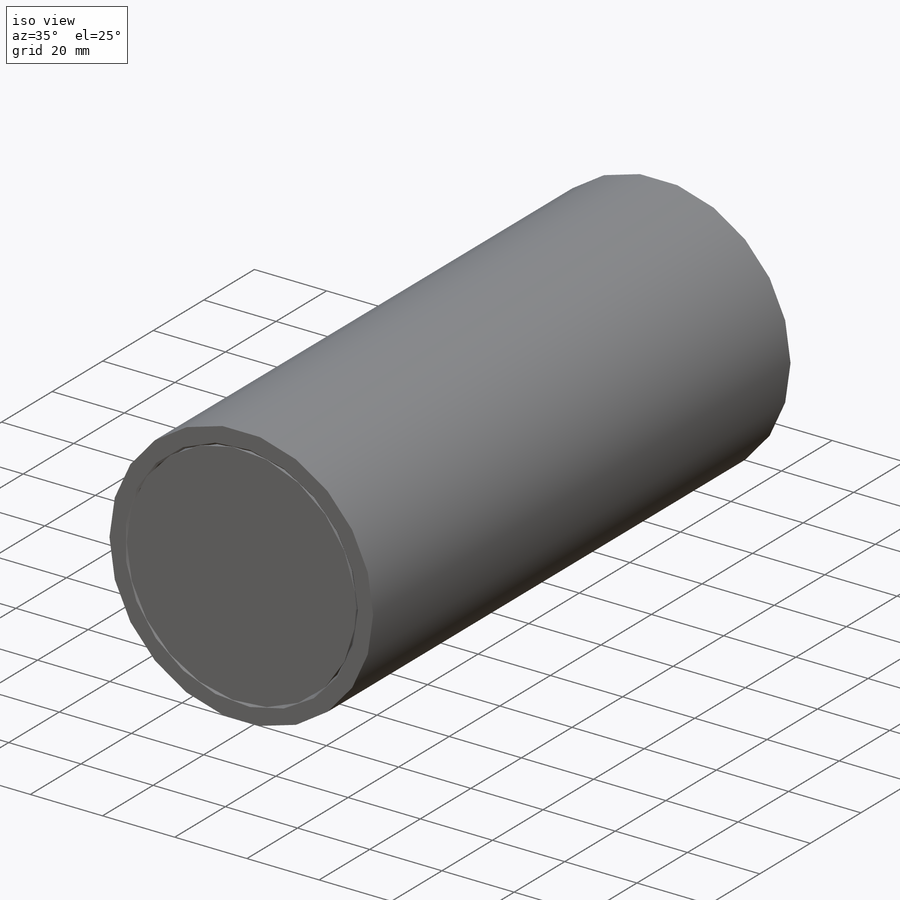
[diagram: iso view]
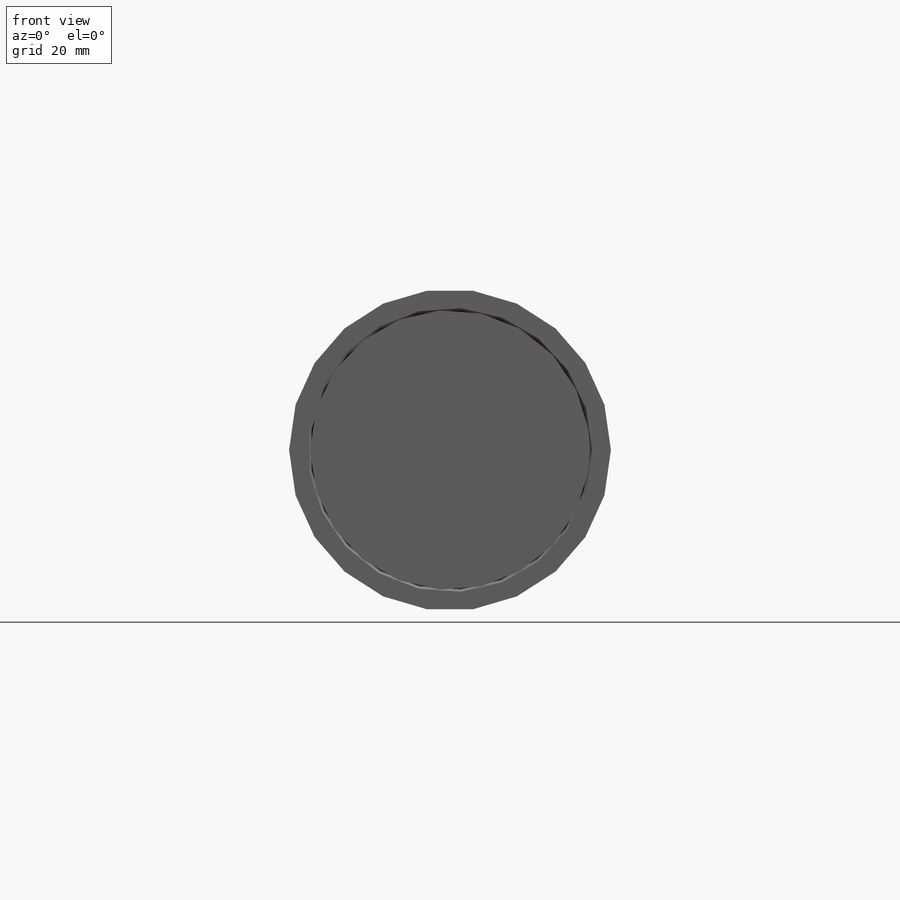
[diagram: front view]
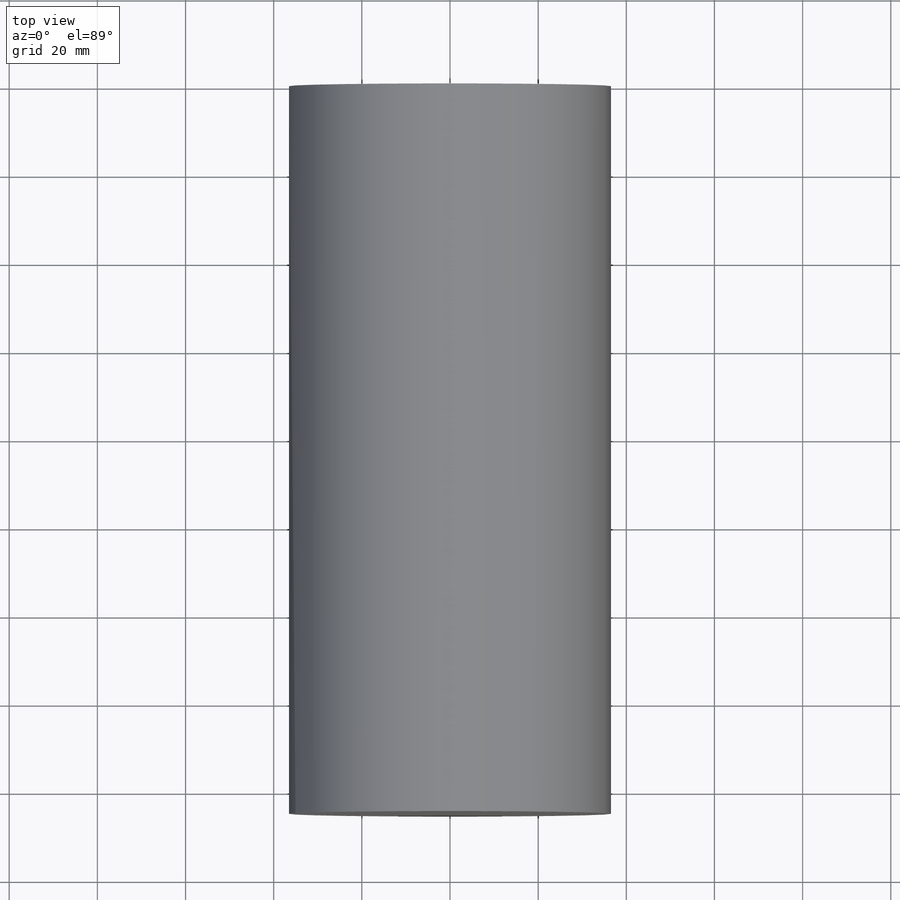
[diagram: top view]
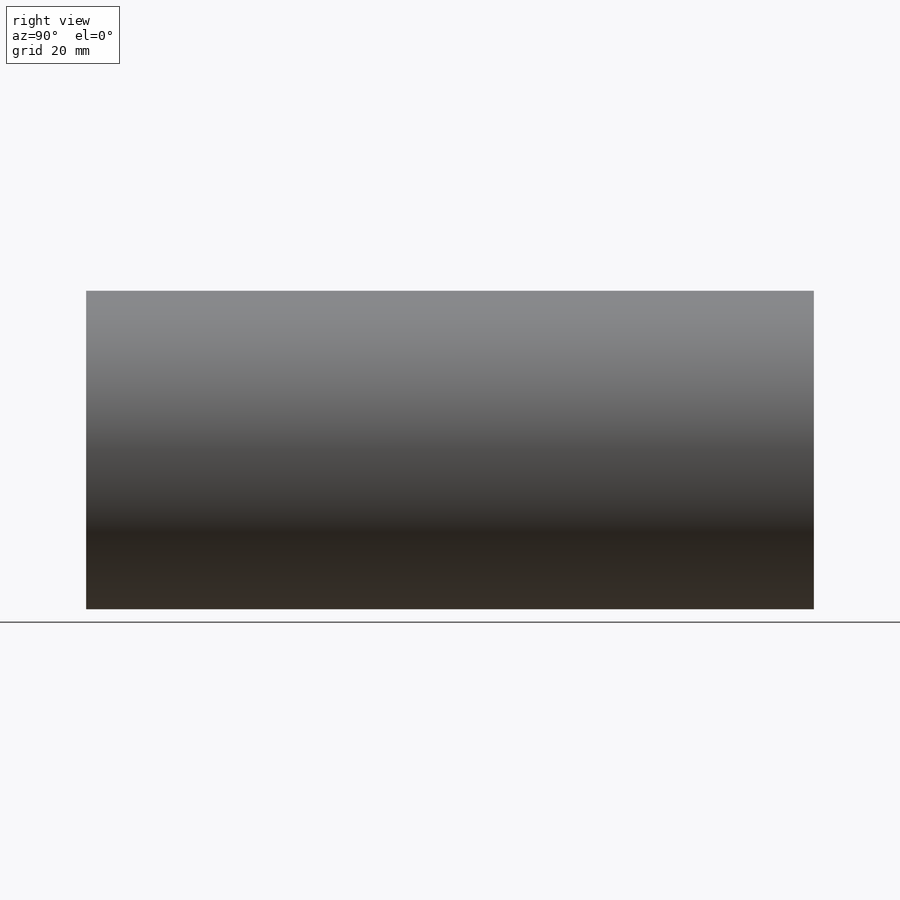
[diagram: right view]
SOLIDWORKS PART (.sldprt)
format: sldprt  version: not decoded by parser v0  size: 225,280 bytes
history: native  units: mm
features: sketch x4, extrude x2, material x1, chamfer x1 (+11 scaffold rows collapsed)
feature tree (19):
  scaffold x11  (default folders/planes/origin — collapsed)
  material  "6061 Alloy"
  sketch  "Sketch1"  dims[D1=42.8625mm]
  extrude  "Extrude1"  Depth=165.1mm
  sketch  "Sketch2"  dims[c1.D1=45.0deg c2.D1=1.5875mm c2.D2=19.05mm c2.D3=19.05mm c2.D4=20.6375mm c2.D5=20.6375mm]
  sketch  "Sketch3"  dims[c1.D4=~1.318628mm c1.D1=12.7mm c1.D2=12.7mm c1.D3=6.35mm c2.D4=9.525mm c2.D5=9.525mm c2.D6=19.05mm c2.D7=19.05mm c2.D8=63.5mm]
  chamfer  "Chamfer1"  Distance=0.508mm Angle=45deg
  extrude  "Boss-Extrude1"  [1 undecoded]
  sketch  "Sketch1<2>"  dims[D1=165.1mm]
decode coverage: 6 of 7 modeling features carry decoded parameters
note: ~ marks probable driven/reference dimensions
note: 1 parameter value undecoded
note: suppression state not decoded; provenance and decode notes live in map.json
